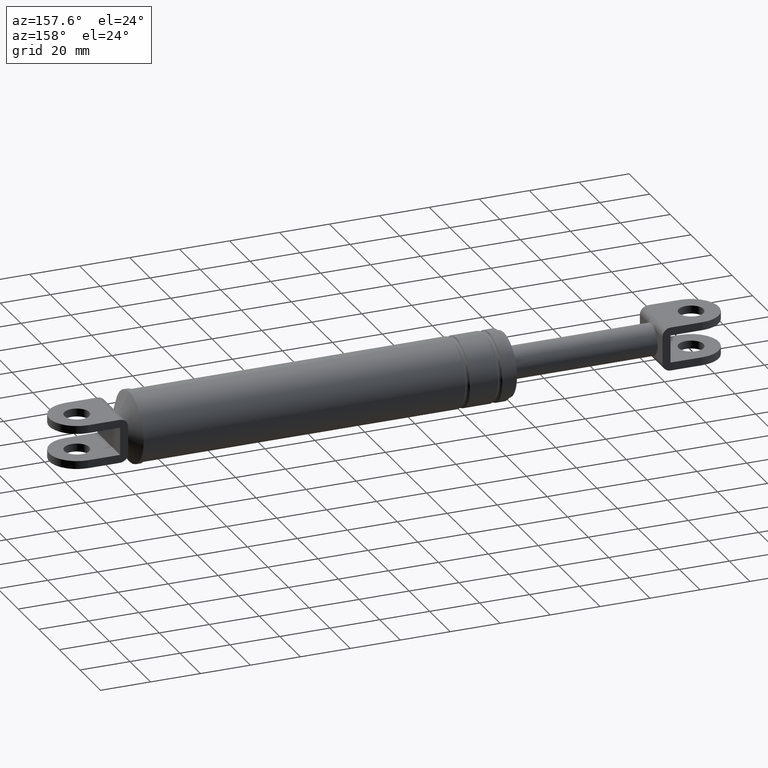
[diagram: clean part render]
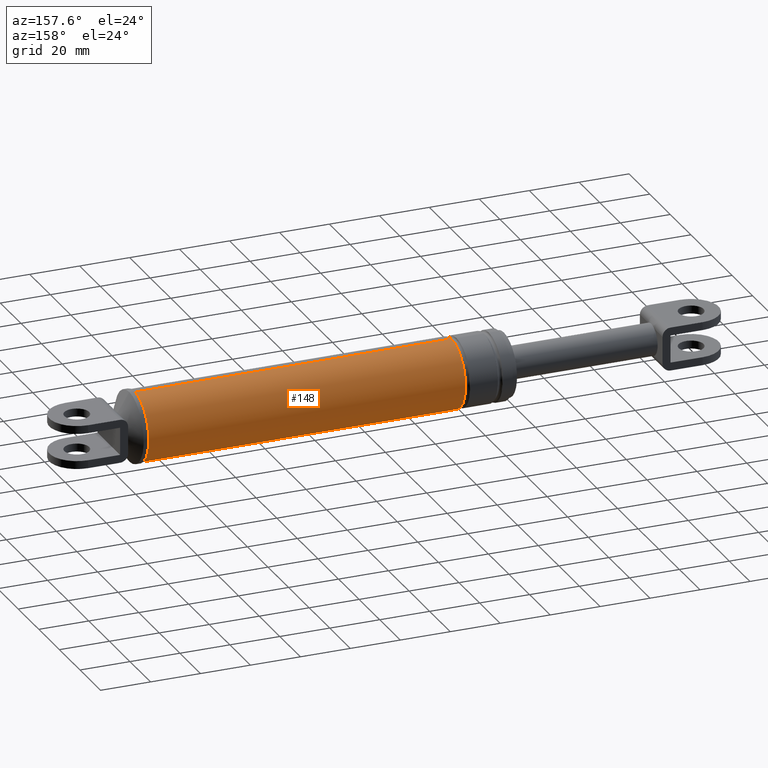
[diagram: same view with one face highlighted and labeled with its STEP entity id]
A machine part, auxiliary view. The second image highlights one B-rep face of the part: STEP entity #148.
In plain terms, the highlighted cylindrical surface (partial cylindrical patch) has radius 13.7 mm, axis along (-1, -0, -0).
Its self-contained STEP definition (entity closure, byte-faithful):
#148=ADVANCED_FACE('',(#543),#542,.T.);
#542=CYLINDRICAL_SURFACE('',#1559,1.37000000000E+001);
#543=FACE_OUTER_BOUND('',#1560,.T.);
#1556=CARTESIAN_POINT('',(1.75331797029E+002,-1.11130927453E-013,1.19820542859E+002));
#1557=DIRECTION('',(-1.00000000000E+000,-1.46694769862E-015,-3.54452212500E-031));
#1558=DIRECTION('',(1.15450556906E-029,-8.11174652940E-015,1.00000000000E+000));
#1559=AXIS2_PLACEMENT_3D('',#1556,#1557,#1558);
#1560=EDGE_LOOP('',(#2141,#2142,#2143,#2144));
#2141=ORIENTED_EDGE('',*,*,#2368,.F.);
#2142=ORIENTED_EDGE('',*,*,#2371,.F.);
#2143=ORIENTED_EDGE('',*,*,#2315,.T.);
#2144=ORIENTED_EDGE('',*,*,#2372,.T.);
#2315=EDGE_CURVE('',#2670,#2671,#2672,.T.);
#2368=EDGE_CURVE('',#3009,#3016,#3017,.T.);
#2371=EDGE_CURVE('',#2670,#3009,#3035,.T.);
#2372=EDGE_CURVE('',#2671,#3016,#3041,.T.);
#2670=VERTEX_POINT('',#3622);
#2671=VERTEX_POINT('',#3623);
#2672=CIRCLE('',#3627,1.37000000000E+001);
#3009=VERTEX_POINT('',#3837);
#3016=VERTEX_POINT('',#3843);
#3017=CIRCLE('',#3847,1.37000000000E+001);
#3035=(BOUNDED_CURVE() B_SPLINE_CURVE(1,(#3859,#3860),.UNSPECIFIED.,.F.,.F.) B_SPLINE_CURVE_WITH_KNOTS((2,2),(6.80272107940E-002,9.31972788954E-001),.UNSPECIFIED.) CURVE() GEOMETRIC_REPRESENTATION_ITEM() RATIONAL_B_SPLINE_CURVE((1.00000000000E+000,1.00000000000E+000)) REPRESENTATION_ITEM('') );
#3041=(BOUNDED_CURVE() B_SPLINE_CURVE(1,(#3861,#3862),.UNSPECIFIED.,.F.,.F.) B_SPLINE_CURVE_WITH_KNOTS((2,2),(6.80272108844E-002,9.31972789116E-001),.UNSPECIFIED.) CURVE() GEOMETRIC_REPRESENTATION_ITEM() RATIONAL_B_SPLINE_CURVE((7.50000000000E-001,7.50000000000E-001)) REPRESENTATION_ITEM('') );
#3622=CARTESIAN_POINT('',(3.12331797029E+002,2.30926389122E-014,1.33520542859E+002));
#3623=CARTESIAN_POINT('',(3.12331797029E+002,7.52689430633E-015,1.06120542859E+002));
#3624=CARTESIAN_POINT('',(3.12331797029E+002,1.12117697108E-014,1.19820542859E+002));
#3625=DIRECTION('',(-1.00000000000E+000,1.46694769862E-015,1.38016011913E-030));
#3626=DIRECTION('',(-2.60582257749E-030,-8.35518852861E-016,-1.00000000000E+000));
#3627=AXIS2_PLACEMENT_3D('',#3624,#3625,#3626);
#3837=CARTESIAN_POINT('',(1.85331797029E+002,2.30926389122E-014,1.33520542859E+002));
#3843=CARTESIAN_POINT('',(1.85331797029E+002,7.52689430633E-015,1.06120542859E+002));
#3844=CARTESIAN_POINT('',(1.85331797029E+002,1.12117697108E-014,1.19820542859E+002));
#3845=DIRECTION('',(-1.00000000000E+000,-7.33473849312E-016,-6.90080059566E-031));
#3846=DIRECTION('',(1.30291128875E-030,-8.35518852861E-016,-1.00000000000E+000));
#3847=AXIS2_PLACEMENT_3D('',#3844,#3845,#3846);
#3859=CARTESIAN_POINT('',(3.12331797042E+002,-2.12900201747E-014,1.33520542859E+002));
#3860=CARTESIAN_POINT('',(1.85331797052E+002,-2.07592377885E-013,1.33520542859E+002));
#3861=CARTESIAN_POINT('',(3.12331797029E+002,2.00869303554E-013,1.06120542859E+002));
#3862=CARTESIAN_POINT('',(1.85331797029E+002,1.46619929601E-014,1.06120542859E+002));